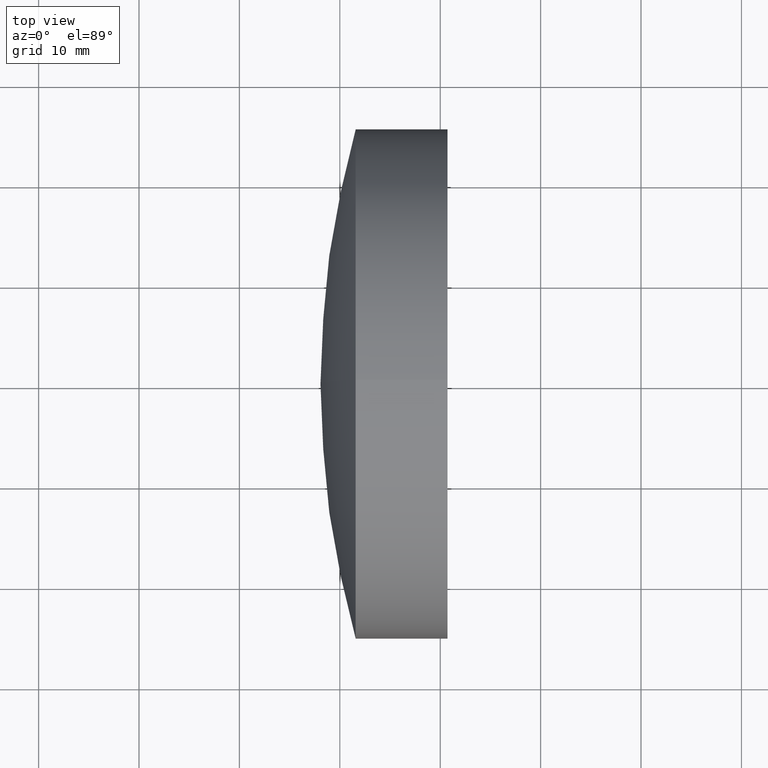
[diagram: clean part render]
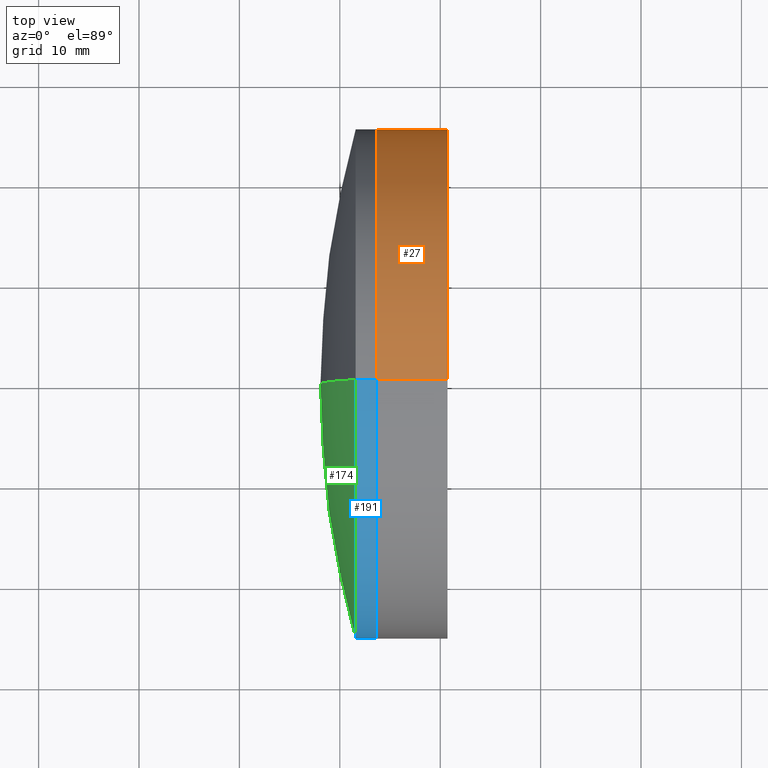
[diagram: same view with three faces highlighted in distinct colors, each labeled with its STEP entity id]
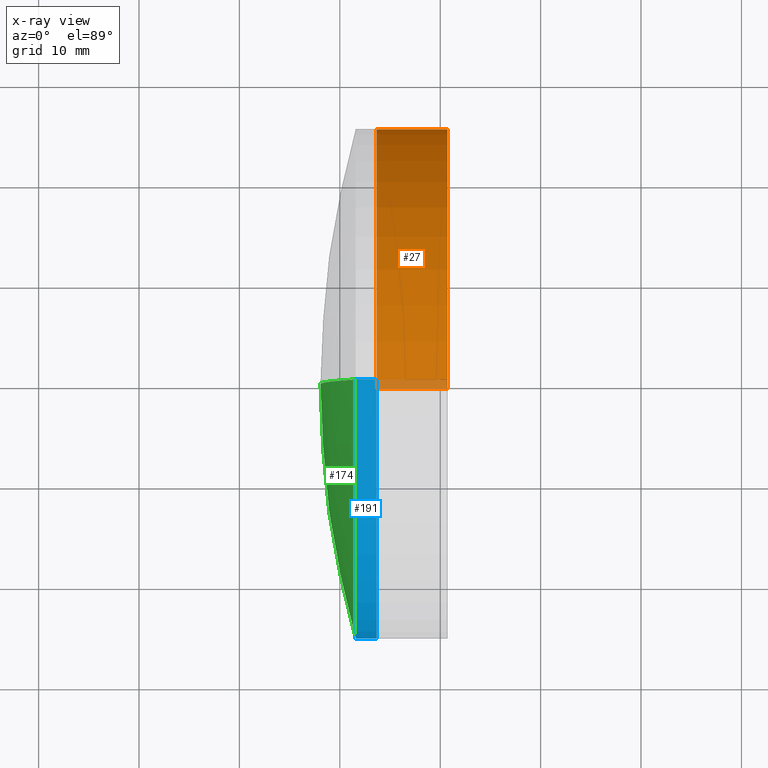
[diagram: x-ray of the same camera — body ghosted, the three highlighted faces saturated]
A machine part, top view with three faces highlighted in distinct colors.
The next image is the same camera in x-ray (body ghosted, the three faces saturated) — at least one of them is partly hidden behind the body in this view.
Their STEP definitions:

[orange] entity #27 — the highlighted cylindrical surface (partial cylindrical patch) has radius 25.4 mm, axis along (-1, -0, -0).
#9 = AXIS2_PLACEMENT_3D ( 'NONE', #243, #24, #107 ) ;
#12 = DIRECTION ( 'NONE',  ( 0.0000000000000000000, 0.0000000000000000000, 1.000000000000000000 ) ) ;
#20 = DIRECTION ( 'NONE',  ( 0.0000000000000000000, 0.0000000000000000000, 1.000000000000000000 ) ) ;
#24 = DIRECTION ( 'NONE',  ( -1.000000000000000000, -0.0000000000000000000, -0.0000000000000000000 ) ) ;
#27 = ADVANCED_FACE ( 'NONE', ( #300 ), #182, .T. ) ;
#49 = VERTEX_POINT ( 'NONE', #152 ) ;
#52 = LINE ( 'NONE', #299, #119 ) ;
#61 = ORIENTED_EDGE ( 'NONE', *, *, #217, .F. ) ;
#62 = CIRCLE ( 'NONE', #153, 25.39999999999991700 ) ;
#63 = EDGE_CURVE ( 'NONE', #136, #90, #332, .T. ) ;
#67 = CARTESIAN_POINT ( 'NONE',  ( -0.5519199926577972300, 0.0000000000000000000, 0.0000000000000000000 ) ) ;
#79 = CARTESIAN_POINT ( 'NONE',  ( 153.6621801840200600, 0.0000000000000000000, -25.39999999999994200 ) ) ;
#90 = VERTEX_POINT ( 'NONE', #79 ) ;
#107 = DIRECTION ( 'NONE',  ( 0.0000000000000000000, 0.0000000000000000000, 1.000000000000000000 ) ) ;
#114 = DIRECTION ( 'NONE',  ( -1.000000000000000000, -0.0000000000000000000, -0.0000000000000000000 ) ) ;
#119 = VECTOR ( 'NONE', #180, 1000.000000000000000 ) ;
#122 = CARTESIAN_POINT ( 'NONE',  ( 160.7269477456904700, 0.0000000000000000000, -25.39999999999988100 ) ) ;
#136 = VERTEX_POINT ( 'NONE', #213 ) ;
#150 = VERTEX_POINT ( 'NONE', #122 ) ;
#152 = CARTESIAN_POINT ( 'NONE',  ( 160.7269477456904700, -3.110602869834261900E-015, 25.39999999999988100 ) ) ;
#153 = AXIS2_PLACEMENT_3D ( 'NONE', #287, #114, #12 ) ;
#157 = ORIENTED_EDGE ( 'NONE', *, *, #176, .T. ) ;
#162 = ORIENTED_EDGE ( 'NONE', *, *, #63, .F. ) ;
#176 = EDGE_CURVE ( 'NONE', #150, #90, #200, .T. ) ;
#180 = DIRECTION ( 'NONE',  ( -1.000000000000000000, -0.0000000000000000000, -0.0000000000000000000 ) ) ;
#182 = CYLINDRICAL_SURFACE ( 'NONE', #231, 25.39999999999991700 ) ;
#199 = EDGE_LOOP ( 'NONE', ( #297, #157, #162, #61 ) ) ;
#200 = LINE ( 'NONE', #309, #225 ) ;
#213 = CARTESIAN_POINT ( 'NONE',  ( 153.6621801840200600, -3.110602869834270200E-015, 25.39999999999997700 ) ) ;
#217 = EDGE_CURVE ( 'NONE', #49, #136, #52, .T. ) ;
#222 = EDGE_CURVE ( 'NONE', #49, #150, #62, .T. ) ;
#225 = VECTOR ( 'NONE', #279, 1000.000000000000000 ) ;
#231 = AXIS2_PLACEMENT_3D ( 'NONE', #67, #237, #20 ) ;
#237 = DIRECTION ( 'NONE',  ( -1.000000000000000000, -0.0000000000000000000, -0.0000000000000000000 ) ) ;
#243 = CARTESIAN_POINT ( 'NONE',  ( 153.6621801840200600, 0.0000000000000000000, 0.0000000000000000000 ) ) ;
#279 = DIRECTION ( 'NONE',  ( -1.000000000000000000, -0.0000000000000000000, -0.0000000000000000000 ) ) ;
#287 = CARTESIAN_POINT ( 'NONE',  ( 160.7269477456904700, 0.0000000000000000000, 0.0000000000000000000 ) ) ;
#297 = ORIENTED_EDGE ( 'NONE', *, *, #222, .T. ) ;
#299 = CARTESIAN_POINT ( 'NONE',  ( -0.5519199926577972300, 0.0000000000000000000, 25.39999999999991700 ) ) ;
#300 = FACE_OUTER_BOUND ( 'NONE', #199, .T. ) ;
#309 = CARTESIAN_POINT ( 'NONE',  ( -0.5519199926577972300, 3.110602869834266600E-015, -25.39999999999991700 ) ) ;
#332 = CIRCLE ( 'NONE', #9, 25.39999999999991700 ) ;

[blue] entity #191 — the highlighted cylindrical surface (partial cylindrical patch) has radius 25.4 mm, axis along (-1, -0, -0).
#13 = ORIENTED_EDGE ( 'NONE', *, *, #305, .T. ) ;
#38 = DIRECTION ( 'NONE',  ( -1.000000000000000000, -0.0000000000000000000, -0.0000000000000000000 ) ) ;
#39 = LINE ( 'NONE', #195, #194 ) ;
#41 = CIRCLE ( 'NONE', #201, 25.39999999999997000 ) ;
#44 = VERTEX_POINT ( 'NONE', #223 ) ;
#46 = EDGE_CURVE ( 'NONE', #44, #228, #269, .T. ) ;
#51 = DIRECTION ( 'NONE',  ( -1.000000000000000000, -0.0000000000000000000, -0.0000000000000000000 ) ) ;
#56 = EDGE_LOOP ( 'NONE', ( #209, #13, #241, #221 ) ) ;
#69 = CARTESIAN_POINT ( 'NONE',  ( 153.6621801840200900, 3.110602869834273700E-015, -25.39999999999997000 ) ) ;
#82 = DIRECTION ( 'NONE',  ( -1.000000000000000000, -0.0000000000000000000, -0.0000000000000000000 ) ) ;
#93 = CARTESIAN_POINT ( 'NONE',  ( -0.8160621761658039000, 0.0000000000000000000, 0.0000000000000000000 ) ) ;
#95 = CARTESIAN_POINT ( 'NONE',  ( -0.8160621761658039000, 0.0000000000000000000, 25.39999999999997000 ) ) ;
#102 = DIRECTION ( 'NONE',  ( -1.000000000000000000, -0.0000000000000000000, -0.0000000000000000000 ) ) ;
#139 = VERTEX_POINT ( 'NONE', #69 ) ;
#191 = ADVANCED_FACE ( 'NONE', ( #207 ), #298, .T. ) ;
#194 = VECTOR ( 'NONE', #102, 1000.000000000000000 ) ;
#195 = CARTESIAN_POINT ( 'NONE',  ( -0.8160621761658039000, 3.110602869834273700E-015, -25.39999999999997000 ) ) ;
#201 = AXIS2_PLACEMENT_3D ( 'NONE', #270, #38, #239 ) ;
#204 = VECTOR ( 'NONE', #314, 1000.000000000000000 ) ;
#206 = CARTESIAN_POINT ( 'NONE',  ( 153.6621801840200900, 0.0000000000000000000, 0.0000000000000000000 ) ) ;
#207 = FACE_OUTER_BOUND ( 'NONE', #56, .T. ) ;
#209 = ORIENTED_EDGE ( 'NONE', *, *, #329, .F. ) ;
#218 = CARTESIAN_POINT ( 'NONE',  ( 151.5808072753462700, 0.0000000000000000000, 25.39999999999994900 ) ) ;
#221 = ORIENTED_EDGE ( 'NONE', *, *, #226, .F. ) ;
#223 = CARTESIAN_POINT ( 'NONE',  ( 153.6621801840200900, 0.0000000000000000000, 25.39999999999997000 ) ) ;
#226 = EDGE_CURVE ( 'NONE', #274, #228, #41, .T. ) ;
#228 = VERTEX_POINT ( 'NONE', #218 ) ;
#239 = DIRECTION ( 'NONE',  ( 0.0000000000000000000, 0.0000000000000000000, 1.000000000000000000 ) ) ;
#241 = ORIENTED_EDGE ( 'NONE', *, *, #46, .T. ) ;
#249 = DIRECTION ( 'NONE',  ( 0.0000000000000000000, 0.0000000000000000000, 1.000000000000000000 ) ) ;
#250 = CARTESIAN_POINT ( 'NONE',  ( 151.5808072753462700, 3.110602869834271300E-015, -25.40000000000002700 ) ) ;
#258 = DIRECTION ( 'NONE',  ( 0.0000000000000000000, 0.0000000000000000000, 1.000000000000000000 ) ) ;
#269 = LINE ( 'NONE', #95, #204 ) ;
#270 = CARTESIAN_POINT ( 'NONE',  ( 151.5808072753462500, 0.0000000000000000000, 0.0000000000000000000 ) ) ;
#271 = AXIS2_PLACEMENT_3D ( 'NONE', #206, #51, #249 ) ;
#274 = VERTEX_POINT ( 'NONE', #250 ) ;
#298 = CYLINDRICAL_SURFACE ( 'NONE', #321, 25.39999999999997000 ) ;
#305 = EDGE_CURVE ( 'NONE', #139, #44, #316, .T. ) ;
#314 = DIRECTION ( 'NONE',  ( -1.000000000000000000, -0.0000000000000000000, -0.0000000000000000000 ) ) ;
#316 = CIRCLE ( 'NONE', #271, 25.39999999999997000 ) ;
#321 = AXIS2_PLACEMENT_3D ( 'NONE', #93, #82, #258 ) ;
#329 = EDGE_CURVE ( 'NONE', #139, #274, #39, .T. ) ;

[green] entity #174 — the highlighted spherical surface has radius 93.76 mm.
#4 = CARTESIAN_POINT ( 'NONE',  ( 148.0747689612467800, 0.0000000000000000000, -6.928037612090617800E-014 ) ) ;
#8 = CIRCLE ( 'NONE', #58, 93.76000000000001900 ) ;
#10 = CIRCLE ( 'NONE', #205, 93.76000000000001900 ) ;
#38 = DIRECTION ( 'NONE',  ( -1.000000000000000000, -0.0000000000000000000, -0.0000000000000000000 ) ) ;
#40 = DIRECTION ( 'NONE',  ( 0.0000000000000000000, -1.224646799147353500E-016, 1.000000000000000000 ) ) ;
#41 = CIRCLE ( 'NONE', #201, 25.39999999999997000 ) ;
#50 = CARTESIAN_POINT ( 'NONE',  ( 241.8347689612468200, 0.0000000000000000000, -7.502152031530896200E-014 ) ) ;
#58 = AXIS2_PLACEMENT_3D ( 'NONE', #328, #327, #259 ) ;
#78 = CARTESIAN_POINT ( 'NONE',  ( 241.8347689612468200, 0.0000000000000000000, -7.502152031530896200E-014 ) ) ;
#99 = DIRECTION ( 'NONE',  ( 0.0000000000000000000, 1.000000000000000000, 0.0000000000000000000 ) ) ;
#100 = EDGE_CURVE ( 'NONE', #228, #110, #8, .T. ) ;
#101 = DIRECTION ( 'NONE',  ( 0.0000000000000000000, 0.0000000000000000000, 1.000000000000000000 ) ) ;
#110 = VERTEX_POINT ( 'NONE', #4 ) ;
#121 = EDGE_LOOP ( 'NONE', ( #296, #165, #184 ) ) ;
#165 = ORIENTED_EDGE ( 'NONE', *, *, #226, .T. ) ;
#174 = ADVANCED_FACE ( 'NONE', ( #198 ), #285, .T. ) ;
#184 = ORIENTED_EDGE ( 'NONE', *, *, #100, .T. ) ;
#198 = FACE_OUTER_BOUND ( 'NONE', #121, .T. ) ;
#201 = AXIS2_PLACEMENT_3D ( 'NONE', #270, #38, #239 ) ;
#205 = AXIS2_PLACEMENT_3D ( 'NONE', #78, #251, #40 ) ;
#218 = CARTESIAN_POINT ( 'NONE',  ( 151.5808072753462700, 0.0000000000000000000, 25.39999999999994900 ) ) ;
#226 = EDGE_CURVE ( 'NONE', #274, #228, #41, .T. ) ;
#228 = VERTEX_POINT ( 'NONE', #218 ) ;
#239 = DIRECTION ( 'NONE',  ( 0.0000000000000000000, 0.0000000000000000000, 1.000000000000000000 ) ) ;
#250 = CARTESIAN_POINT ( 'NONE',  ( 151.5808072753462700, 3.110602869834271300E-015, -25.40000000000002700 ) ) ;
#251 = DIRECTION ( 'NONE',  ( -0.0000000000000000000, 1.000000000000000000, 1.224646799147353200E-016 ) ) ;
#259 = DIRECTION ( 'NONE',  ( 0.0000000000000000000, 0.0000000000000000000, -1.000000000000000000 ) ) ;
#270 = CARTESIAN_POINT ( 'NONE',  ( 151.5808072753462500, 0.0000000000000000000, 0.0000000000000000000 ) ) ;
#274 = VERTEX_POINT ( 'NONE', #250 ) ;
#285 = SPHERICAL_SURFACE ( 'NONE', #326, 93.76000000000001900 ) ;
#296 = ORIENTED_EDGE ( 'NONE', *, *, #333, .F. ) ;
#326 = AXIS2_PLACEMENT_3D ( 'NONE', #50, #99, #101 ) ;
#327 = DIRECTION ( 'NONE',  ( 0.0000000000000000000, -1.000000000000000000, 0.0000000000000000000 ) ) ;
#328 = CARTESIAN_POINT ( 'NONE',  ( 241.8347689612468200, 0.0000000000000000000, -7.502152031530896200E-014 ) ) ;
#333 = EDGE_CURVE ( 'NONE', #274, #110, #10, .T. ) ;